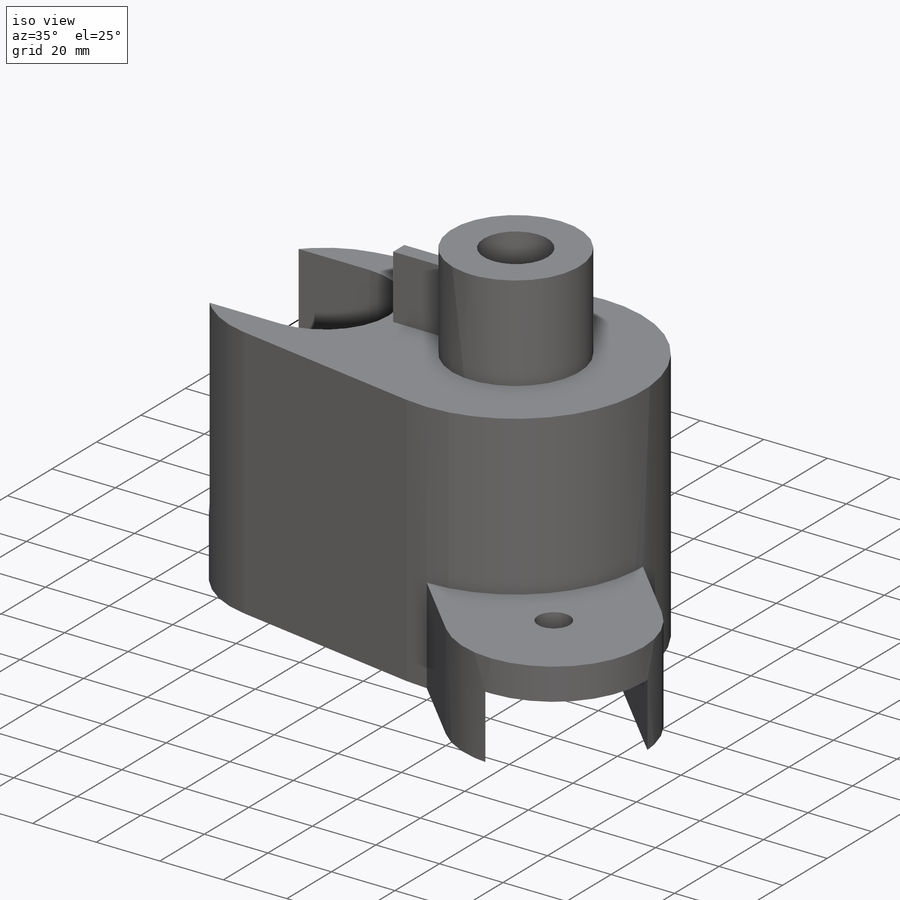
[diagram: iso view]
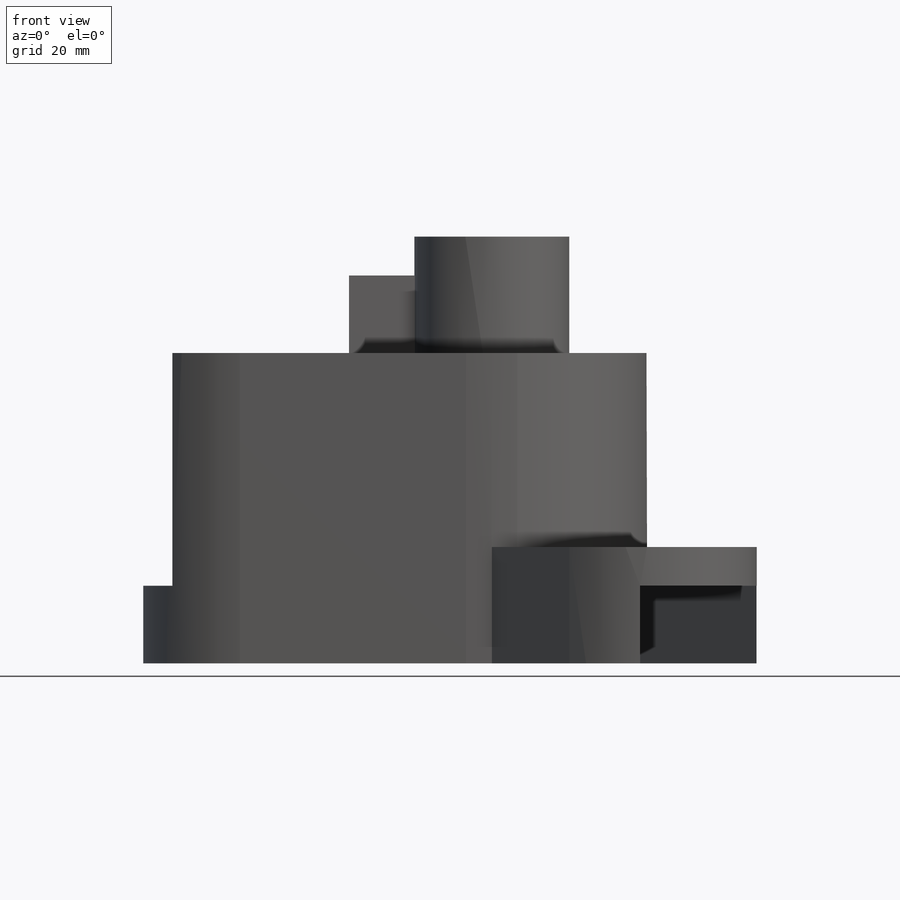
[diagram: front view]
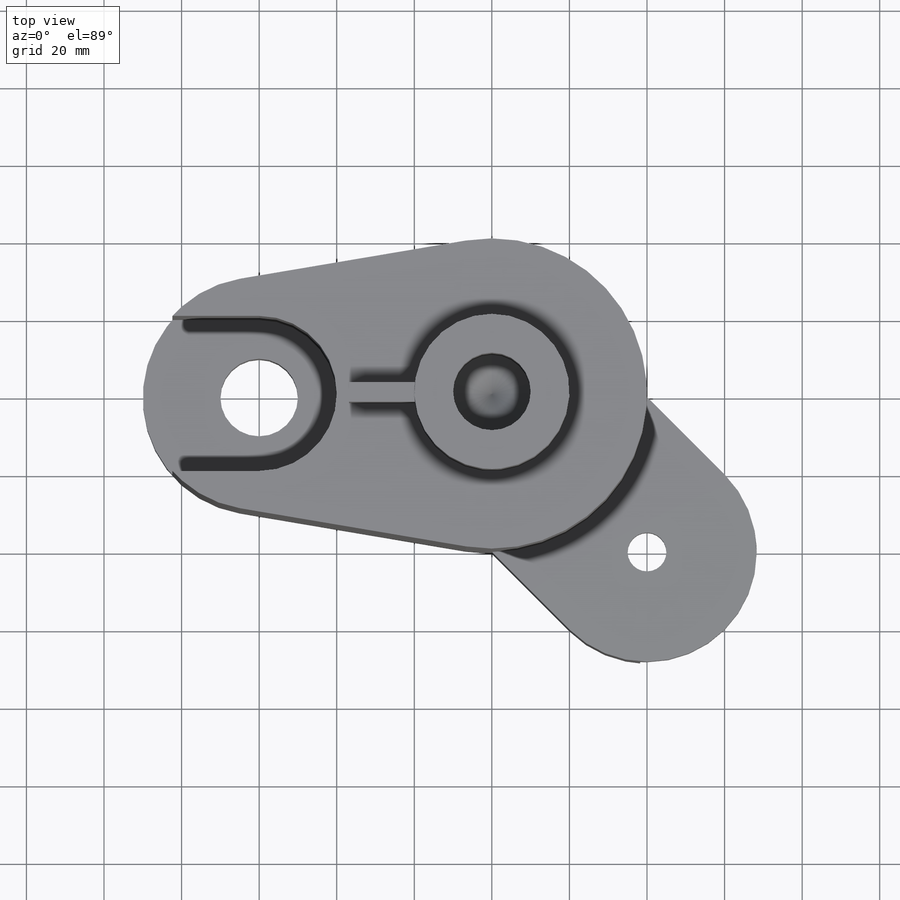
[diagram: top view]
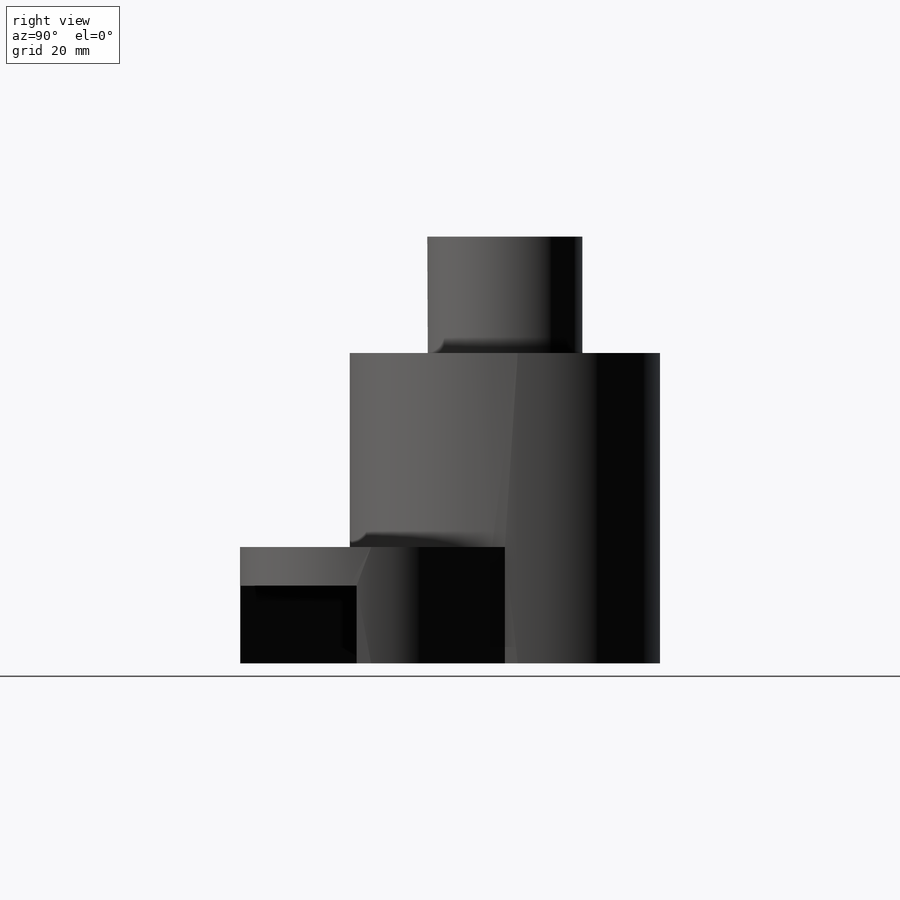
[diagram: right view]
SOLIDWORKS PART (.sldprt)
format: sldprt  version: not decoded by parser v0  size: 314,880 bytes
history: native  units: mm
features: sketch x12, cut_extrude x5, extrude x4, plane x2, material x1, hole x1 (+13 scaffold rows collapsed)
feature tree (38):
  scaffold x13  (default folders/planes/origin — collapsed)
  material  "Material <not specified>"
  sketch  "Sketch1"  dims[D1=80.0mm D3=30.0mm D2=60.0mm D4=20.0mm D5=20.0mm D6=20.0mm]
  extrude  "Boss-Extrude1"  Depth=80mm
  sketch  "Sketch2"  dims[D1=40.0mm]
  cut_extrude  "Cut-Extrude1"  Depth=30mm
  sketch  "Sketch3"  dims[D1=40.0mm]
  extrude  "Boss-Extrude2"  Depth=30mm
  sketch  "Sketch4"
  hole  "Ø20.0mm Dowel Hole1"  Diameter=20mm Depth=30mm
  sketch  "3DSketch1"
  sketch  "Sketch5"  dims[hole-wizard template sketch: 46 standard entries collapsed; hole parameters kept: c15.Hole Dia.=20.0mm c15.Hole Depth=30.0mm c15.D3=~14.816244mm c15.Drill Angle=118.0deg]
  sketch  "Sketch6"  dims[D1=20.0mm]
  cut_extrude  "Cut-Extrude2"  Depth=109mm
  sketch  "Sketch7"  dims[D1=20.0mm D2=20.0mm D3=40.0mm D4=~22.36068mm]
  cut_extrude  "Cut-Extrude3"  Depth=60mm
  plane  "Plane1"
  sketch  "Sketch10"  dims[c1.D8=~28.284271mm c1.D1=~169.877907mm c2.D1=120.0deg c3.D1=40.0mm c3.D2=40.0mm c3.D3=0.0mm c3.D4=40.0mm c3.D5=40.0mm c4.D1=0.0mm c4.D2=40.0mm c4.D3=40.0mm c4.D4=~141.328305mm c5.D4=135.0deg c5.D5=40.0mm c5.D7=40.0mm c5.D6=0.0mm]
  extrude  "Boss-Extrude3"  Depth=30mm
  sketch  "Sketch11"  dims[c1.D3=10.0mm c1.D1=~150.584869mm c1.D2=~150.584869mm c2.D2=135.0deg]
  cut_extrude  "Cut-Extrude4"  Depth=30mm
  plane  "Plane2"
  sketch  "Sketch13"  dims[c1.D1=~119.624796mm c2.D1=135.0deg c2.D2=30.0mm c2.D3=30.0mm c2.D4=0.0mm]
  cut_extrude  "Cut-Extrude5"  Depth=20mm
  sketch  "Sketch14"  dims[D1=5.0mm D2=2.5mm D3=17.0mm]
  extrude  "Boss-Extrude4"  Depth=20mm
decode coverage: 20 of 22 modeling features carry decoded parameters
note: ~ marks probable driven/reference dimensions
note: suppression state not decoded; provenance and decode notes live in map.json
